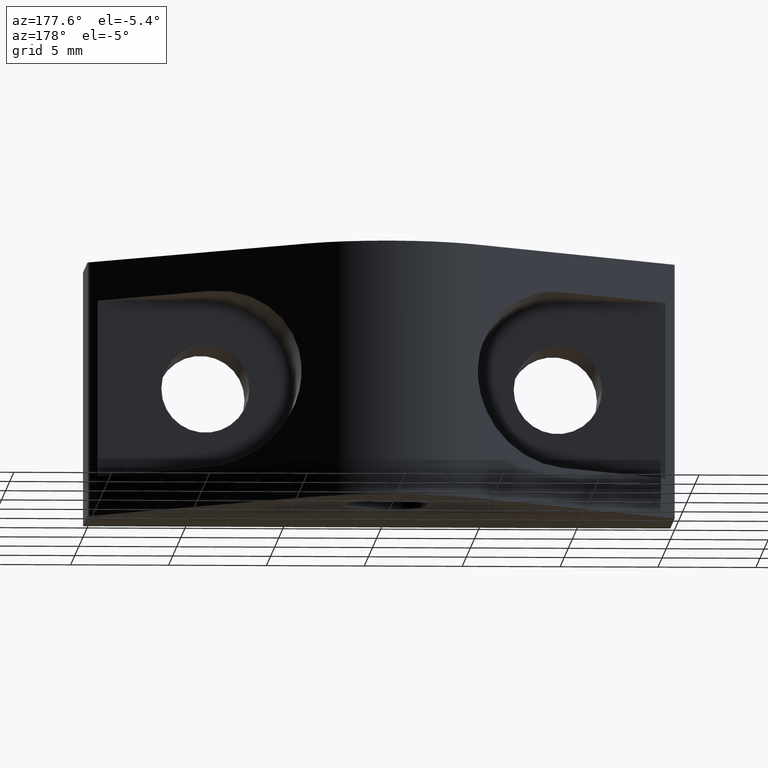
[diagram: clean part render]
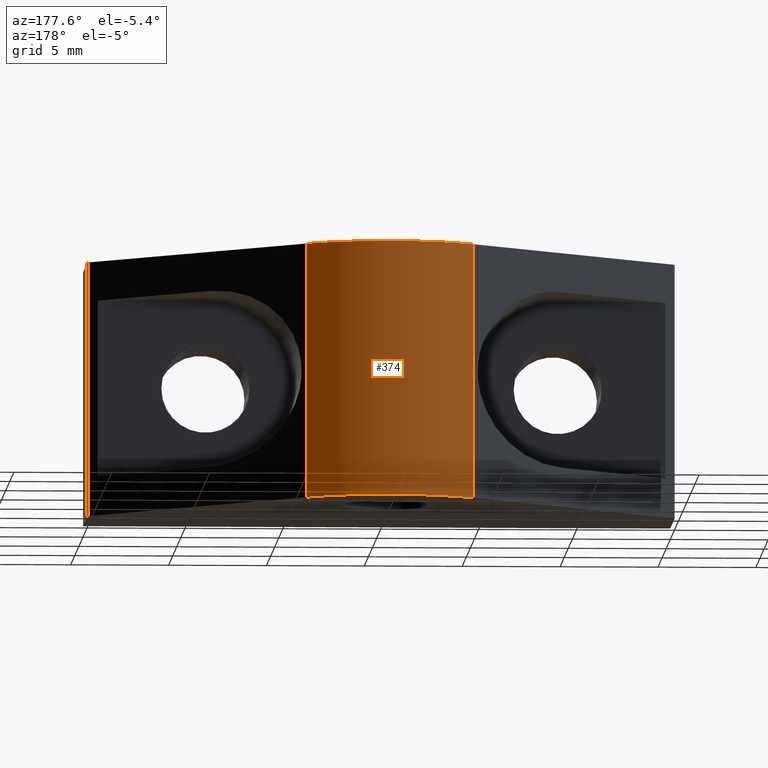
[diagram: same view with one face highlighted and labeled with its STEP entity id]
A machine part, auxiliary view. The second image highlights one B-rep face of the part: STEP entity #374.
In plain terms, the highlighted cylindrical surface (partial cylindrical patch) has radius 6 mm, axis along (0, 0, 1).
Its self-contained STEP definition (entity closure, byte-faithful):
#22=CYLINDRICAL_SURFACE('',#412,6.);
#33=CIRCLE('',#408,6.);
#36=CIRCLE('',#413,6.);
#66=FACE_OUTER_BOUND('',#94,.T.);
#94=EDGE_LOOP('',(#314,#315,#316,#317));
#117=LINE('',#562,#149);
#130=LINE('',#620,#162);
#149=VECTOR('',#444,13.);
#162=VECTOR('',#513,13.);
#181=VERTEX_POINT('',#559);
#182=VERTEX_POINT('',#561);
#195=VERTEX_POINT('',#605);
#199=VERTEX_POINT('',#618);
#215=EDGE_CURVE('',#182,#181,#117,.T.);
#237=EDGE_CURVE('',#181,#195,#33,.T.);
#243=EDGE_CURVE('',#199,#182,#36,.T.);
#244=EDGE_CURVE('',#195,#199,#130,.T.);
#314=ORIENTED_EDGE('',*,*,#243,.T.);
#315=ORIENTED_EDGE('',*,*,#215,.T.);
#316=ORIENTED_EDGE('',*,*,#237,.T.);
#317=ORIENTED_EDGE('',*,*,#244,.T.);
#374=ADVANCED_FACE('',(#66),#22,.T.);
#408=AXIS2_PLACEMENT_3D('',#607,#498,#499);
#412=AXIS2_PLACEMENT_3D('',#617,#509,#510);
#413=AXIS2_PLACEMENT_3D('',#619,#511,#512);
#444=DIRECTION('',(0.,0.,-1.));
#498=DIRECTION('center_axis',(0.,0.,1.));
#499=DIRECTION('ref_axis',(0.,1.,0.));
#509=DIRECTION('center_axis',(0.,0.,1.));
#510=DIRECTION('ref_axis',(0.,1.,0.));
#511=DIRECTION('center_axis',(0.,0.,-1.));
#512=DIRECTION('ref_axis',(0.,1.,0.));
#513=DIRECTION('',(0.,0.,1.));
#559=CARTESIAN_POINT('',(19.2426406871193,16.2573593128807,0.));
#561=CARTESIAN_POINT('',(19.2426406871193,16.2573593128807,13.));
#562=CARTESIAN_POINT('',(19.2426406871193,16.2573593128807,0.));
#605=CARTESIAN_POINT('',(10.7573593128807,16.2573593128807,0.));
#607=CARTESIAN_POINT('Origin',(15.,12.0147186257614,0.));
#617=CARTESIAN_POINT('Origin',(15.,12.0147186257614,0.));
#618=CARTESIAN_POINT('',(10.7573593128807,16.2573593128807,13.));
#619=CARTESIAN_POINT('Origin',(15.,12.0147186257614,13.));
#620=CARTESIAN_POINT('',(10.7573593128807,16.2573593128807,0.));